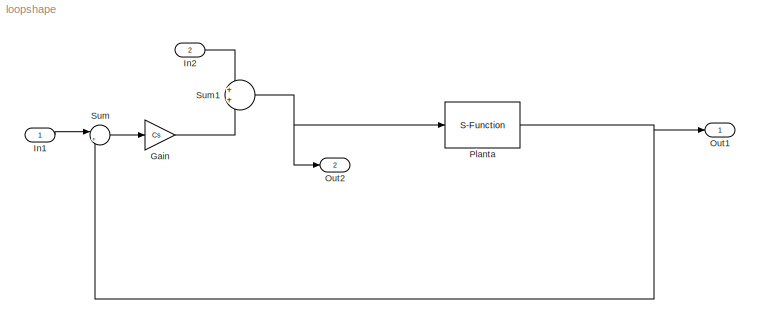
MODEL loopshape
KIND model
BLOCK [Gain] Gain
  Gain = Cs
  OutDataTypeStr = Inherit: Inherit via internal rule
  ParamDataTypeStr = Inherit: Inherit via internal rule
  SID = 3
  SaturateOnIntegerOverflow = off
BLOCK [Inport] In1
  IconDisplay = Port number
  SID = 7
BLOCK [Inport] In2
  IconDisplay = Port number
  Port = 2
  SID = 9
BLOCK [Outport] Out1
  IconDisplay = Port number
  SID = 8
BLOCK [Outport] Out2
  IconDisplay = Port number
  Port = 2
  SID = 14
BLOCK [S-Function] Planta
  EnableBusSupport = off
  FunctionName = UnstableBlackBox_10_sf
  Ports = [1, 1]
  SFcnIsStateOwnerBlock = on
  SFcnStateName = DWORK0
  SFunctionDeploymentMode = off
  SID = 18
BLOCK [Sum] Sum
  IconShape = round
  InputSameDT = off
  Inputs = |+-
  OutDataTypeStr = Inherit: Inherit via internal rule
  Ports = [2, 1]
  SID = 4
  SaturateOnIntegerOverflow = off
BLOCK [Sum] Sum1
  IconShape = round
  InputSameDT = off
  OutDataTypeStr = Inherit: Inherit via internal rule
  Ports = [2, 1]
  SID = 10
  SaturateOnIntegerOverflow = off
LINE Gain:1 -> Sum1:2
LINE In1:1 -> Sum:1
LINE In2:1 -> Sum1:1
NET Planta:1 -> Out1:1, Sum:2
NET Sum1:1 -> Out2:1, Planta:1
LINE Sum:1 -> Gain:1
note: NET lines group one-source signal fan-out (src -> all destinations, sorted); 1:1 wires keep LINE
